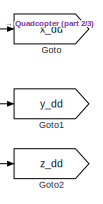
[diagram: root canvas - part 1/3, top center region]
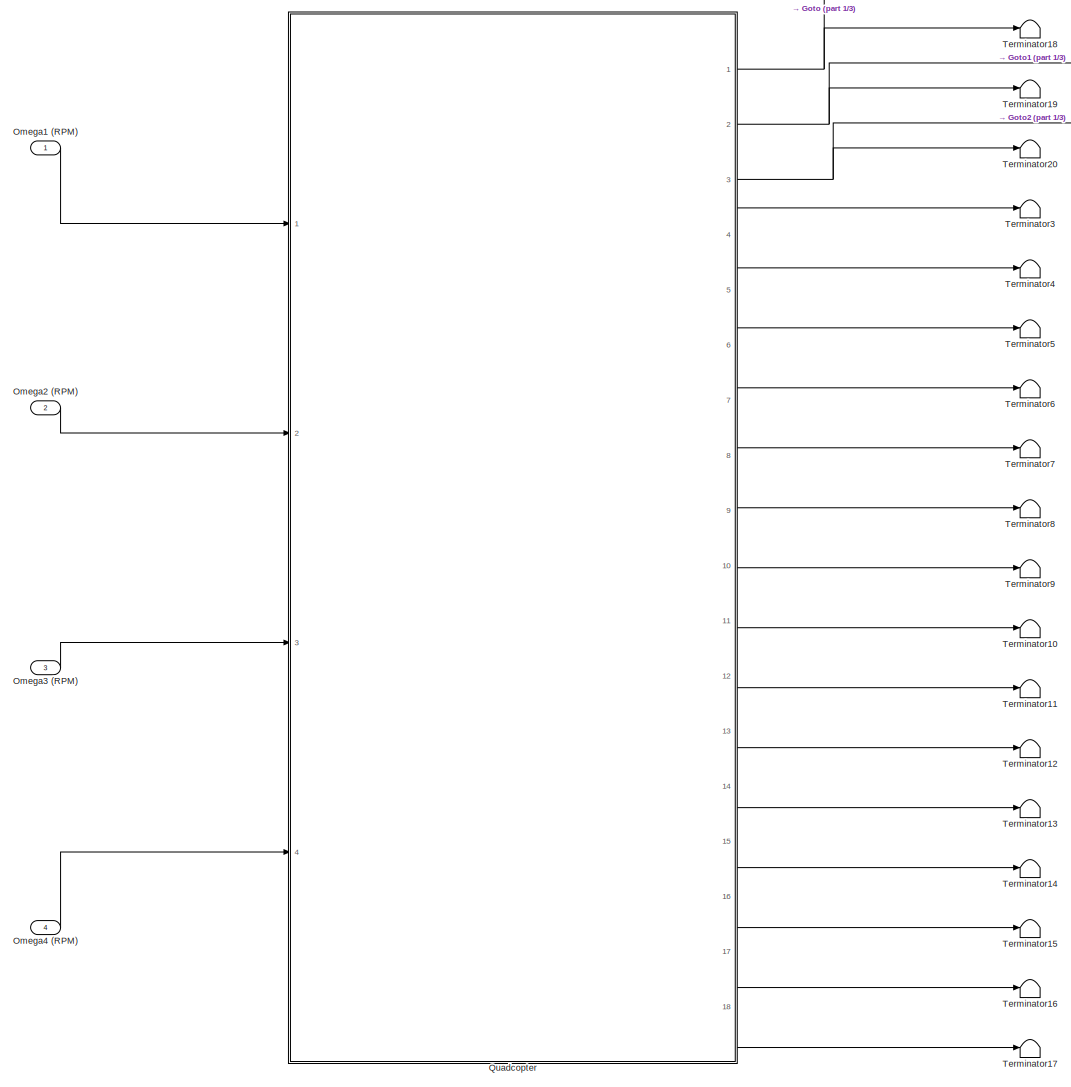
[diagram: root canvas - part 2/3, left side, full height]
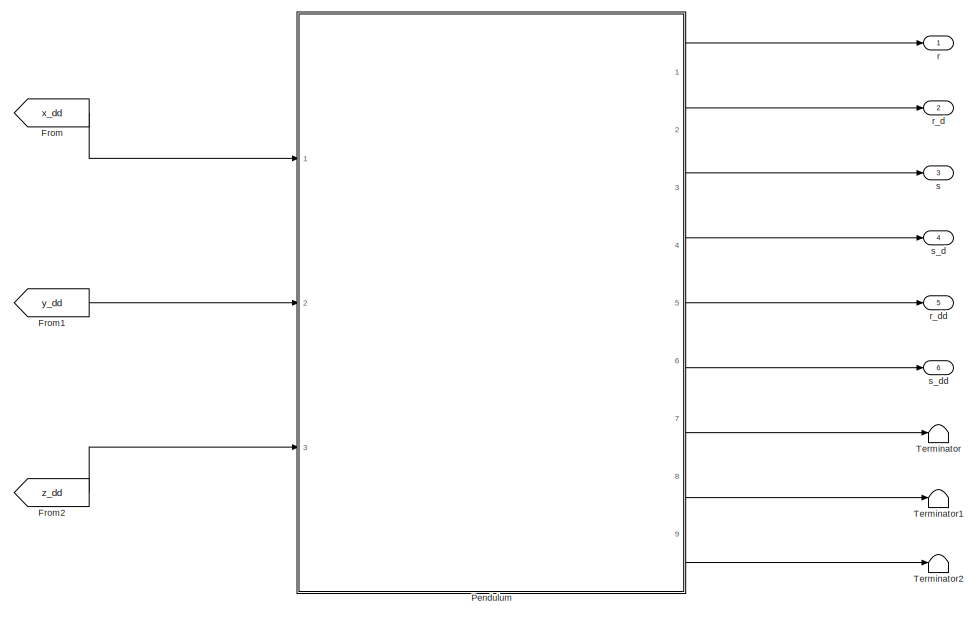
[diagram: root canvas - part 3/3, middle right region]
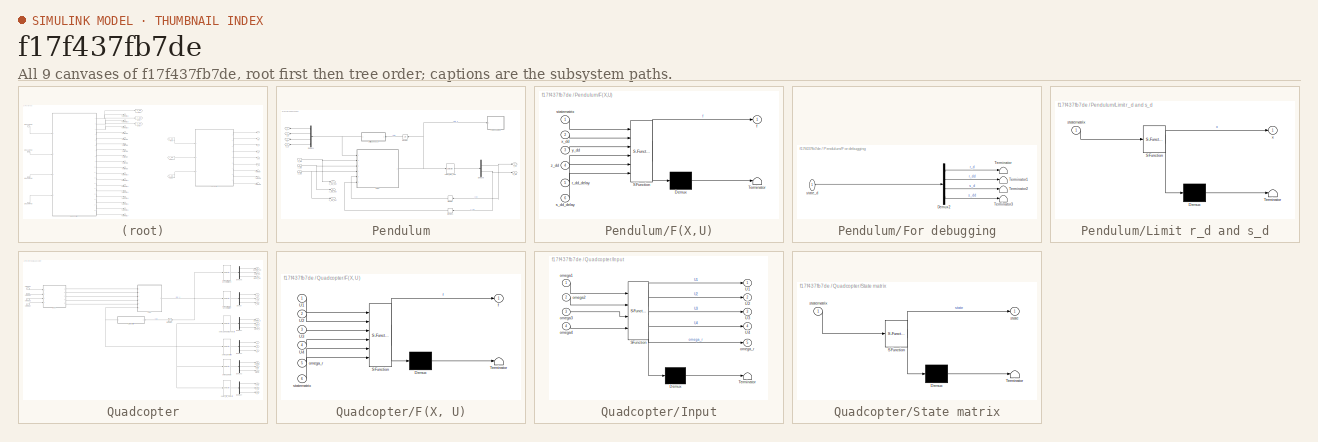
[diagram: thumbnail index - all 9 canvases of the model, root first then tree order]
MODEL slx_f17f437fb7de
KIND model
BLOCK [From] From
  GotoTag = x_dd
BLOCK [From] From1
  GotoTag = y_dd
BLOCK [From] From2
  GotoTag = z_dd
BLOCK [Goto] Goto
  GotoTag = x_dd
BLOCK [Goto] Goto1
  GotoTag = y_dd
BLOCK [Goto] Goto2
  GotoTag = z_dd
BLOCK [Inport] Omega1 (RPM)
  IconDisplay = Port number
BLOCK [Inport] Omega2 (RPM)
  IconDisplay = Port number
  Port = 2
BLOCK [Inport] Omega3 (RPM)
  IconDisplay = Port number
  Port = 3
BLOCK [Inport] Omega4 (RPM)
  IconDisplay = Port number
  Port = 4
BLOCK [SubSystem] Pendulum
  Ports = [3, 9]
  RequestExecContextInheritance = off
BLOCK [Demux] Pendulum/Demux1
  DisplayOption = bar
  Outputs = [1 1 1 1]
  Ports = [1, 4]
BLOCK [Demux] Pendulum/Demux5
  DisplayOption = bar
  Outputs = [1 1]
  Ports = [1, 2]
BLOCK [SubSystem] Pendulum/F(X,U)
  ErrorFcn = Stateflow.Translate.translate
  PermitHierarchicalResolution = ExplicitOnly
  Ports = [6, 1]
  RequestExecContextInheritance = off
  SFBlockType = MATLAB Function
  TreatAsAtomicUnit = on
BLOCK [Demux] Pendulum/F(X,U)/ Demux 
  Outputs = 1
  Ports = [1, 1]
BLOCK [S-Function] Pendulum/F(X,U)/ SFunction 
  EnableBusSupport = on
  FunctionName = sf_sfun
  PortCounts = [6 2]
  Ports = [6, 2]
  Tag = Stateflow S-Function flying_ip_1 4
BLOCK [Terminator] Pendulum/F(X,U)/ Terminator 
BLOCK [Outport] Pendulum/F(X,U)/f
  IconDisplay = Port number
BLOCK [Inport] Pendulum/F(X,U)/r_dd_delay
  IconDisplay = Port number
  Port = 5
BLOCK [Inport] Pendulum/F(X,U)/s_dd_delay
  IconDisplay = Port number
  Port = 6
BLOCK [Inport] Pendulum/F(X,U)/statematrix
  IconDisplay = Port number
BLOCK [Inport] Pendulum/F(X,U)/x_dd
  IconDisplay = Port number
  Port = 2
BLOCK [Inport] Pendulum/F(X,U)/y_dd
  IconDisplay = Port number
  Port = 3
BLOCK [Inport] Pendulum/F(X,U)/z_dd
  IconDisplay = Port number
  Port = 4
BLOCK [SubSystem] Pendulum/For debugging
  Ports = [1]
  RequestExecContextInheritance = off
BLOCK [Demux] Pendulum/For debugging/Demux2
  DisplayOption = bar
  Outputs = [1 1 1 1]
  Ports = [1, 4]
BLOCK [Terminator] Pendulum/For debugging/Terminator
BLOCK [Terminator] Pendulum/For debugging/Terminator1
BLOCK [Terminator] Pendulum/For debugging/Terminator2
BLOCK [Terminator] Pendulum/For debugging/Terminator3
BLOCK [Inport] Pendulum/For debugging/state_d
  IconDisplay = Port number
BLOCK [Integrator] Pendulum/Integrator
  Ports = [1, 1]
BLOCK [SubSystem] Pendulum/Limit r_d and s_d
  ErrorFcn = Stateflow.Translate.translate
  PermitHierarchicalResolution = ExplicitOnly
  Ports = [1, 1]
  RequestExecContextInheritance = off
  SFBlockType = MATLAB Function
  TreatAsAtomicUnit = on
BLOCK [Demux] Pendulum/Limit r_d and s_d/ Demux 
  Outputs = 1
  Ports = [1, 1]
BLOCK [S-Function] Pendulum/Limit r_d and s_d/ SFunction 
  EnableBusSupport = on
  FunctionName = sf_sfun
  PortCounts = [1 2]
  Ports = [1, 2]
  Tag = Stateflow S-Function flying_ip_1 5
BLOCK [Terminator] Pendulum/Limit r_d and s_d/ Terminator 
BLOCK [Inport] Pendulum/Limit r_d and s_d/statematrix
  IconDisplay = Port number
BLOCK [Outport] Pendulum/Limit r_d and s_d/x
  IconDisplay = Port number
BLOCK [Memory] Pendulum/Memory
BLOCK [Memory] Pendulum/Memory1
BLOCK [Outport] Pendulum/r
  IconDisplay = Port number
BLOCK [Outport] Pendulum/r_d
  IconDisplay = Port number
  Port = 2
BLOCK [Outport] Pendulum/r_dd
  IconDisplay = Port number
  Port = 5
BLOCK [Outport] Pendulum/s
  IconDisplay = Port number
  Port = 3
BLOCK [Outport] Pendulum/s_d
  IconDisplay = Port number
  Port = 4
BLOCK [Outport] Pendulum/s_dd
  IconDisplay = Port number
  Port = 6
BLOCK [Selector] Pendulum/select_rdd_sdd
  Indices = [2 4]
  InputPortWidth = 4
  Ports = [1, 1]
BLOCK [Inport] Pendulum/x_dd
  IconDisplay = Port number
BLOCK [Outport] Pendulum/x_dd_out
  IconDisplay = Port number
  Port = 7
BLOCK [Inport] Pendulum/y_dd
  IconDisplay = Port number
  Port = 2
BLOCK [Outport] Pendulum/y_dd_out
  IconDisplay = Port number
  Port = 8
BLOCK [Inport] Pendulum/z_dd
  IconDisplay = Port number
  Port = 3
BLOCK [Outport] Pendulum/z_dd_out
  IconDisplay = Port number
  Port = 9
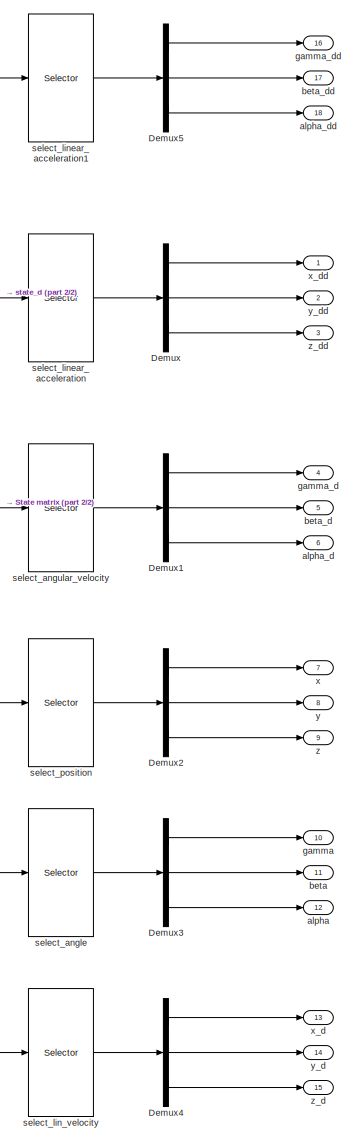
[diagram: Quadcopter - part 1/2, right side, full height]
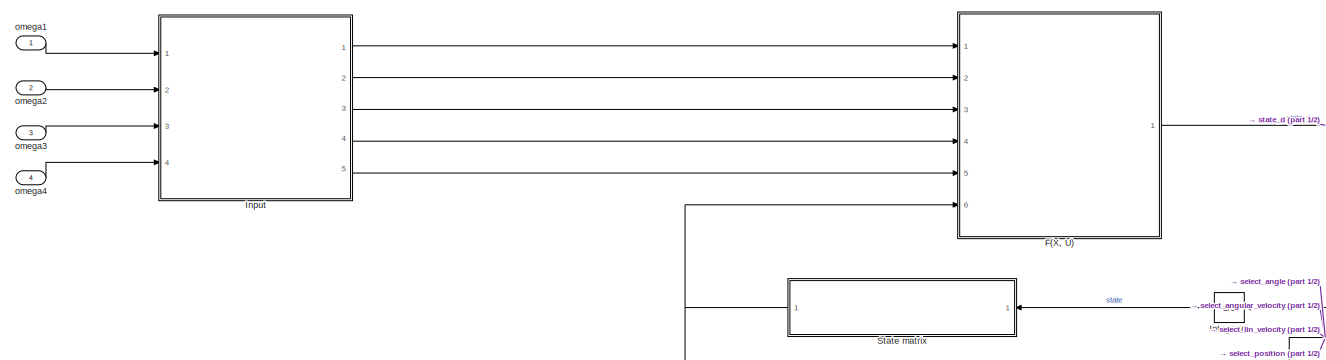
[diagram: Quadcopter - part 2/2, top left region]
BLOCK [SubSystem] Quadcopter
  Ports = [4, 18]
  RequestExecContextInheritance = off
BLOCK [Demux] Quadcopter/Demux
  DisplayOption = bar
  Outputs = [1 1 1]
  Ports = [1, 3]
BLOCK [Demux] Quadcopter/Demux1
  DisplayOption = bar
  Outputs = [1 1 1]
  Ports = [1, 3]
BLOCK [Demux] Quadcopter/Demux2
  DisplayOption = bar
  Outputs = [1 1 1]
  Ports = [1, 3]
BLOCK [Demux] Quadcopter/Demux3
  DisplayOption = bar
  Outputs = [1 1 1]
  Ports = [1, 3]
BLOCK [Demux] Quadcopter/Demux4
  DisplayOption = bar
  Outputs = [1 1 1]
  Ports = [1, 3]
BLOCK [Demux] Quadcopter/Demux5
  DisplayOption = bar
  Outputs = [1 1 1]
  Ports = [1, 3]
BLOCK [SubSystem] Quadcopter/F(X, U)
  ErrorFcn = Stateflow.Translate.translate
  PermitHierarchicalResolution = ExplicitOnly
  Ports = [6, 1]
  RequestExecContextInheritance = off
  SFBlockType = MATLAB Function
  TreatAsAtomicUnit = on
BLOCK [Demux] Quadcopter/F(X, U)/ Demux 
  Outputs = 1
  Ports = [1, 1]
BLOCK [S-Function] Quadcopter/F(X, U)/ SFunction 
  EnableBusSupport = on
  FunctionName = sf_sfun
  PortCounts = [6 2]
  Ports = [6, 2]
  Tag = Stateflow S-Function flying_ip_1 2
BLOCK [Terminator] Quadcopter/F(X, U)/ Terminator 
BLOCK [Inport] Quadcopter/F(X, U)/U1
  IconDisplay = Port number
BLOCK [Inport] Quadcopter/F(X, U)/U2
  IconDisplay = Port number
  Port = 2
BLOCK [Inport] Quadcopter/F(X, U)/U3
  IconDisplay = Port number
  Port = 3
BLOCK [Inport] Quadcopter/F(X, U)/U4
  IconDisplay = Port number
  Port = 4
BLOCK [Outport] Quadcopter/F(X, U)/f
  IconDisplay = Port number
BLOCK [Inport] Quadcopter/F(X, U)/omega_r
  IconDisplay = Port number
  Port = 5
BLOCK [Inport] Quadcopter/F(X, U)/statematrix
  IconDisplay = Port number
  Port = 6
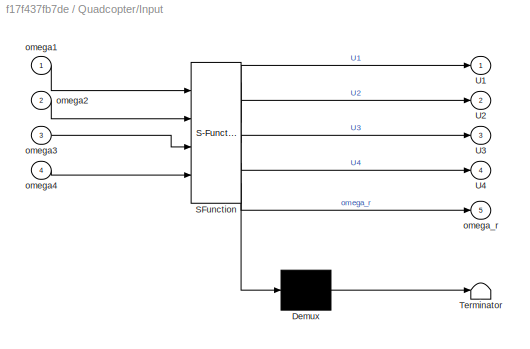
BLOCK [SubSystem] Quadcopter/Input
  ErrorFcn = Stateflow.Translate.translate
  PermitHierarchicalResolution = ExplicitOnly
  Ports = [4, 5]
  RequestExecContextInheritance = off
  SFBlockType = MATLAB Function
  TreatAsAtomicUnit = on
BLOCK [Demux] Quadcopter/Input/ Demux 
  Outputs = 1
  Ports = [1, 1]
BLOCK [S-Function] Quadcopter/Input/ SFunction 
  EnableBusSupport = on
  FunctionName = sf_sfun
  PortCounts = [4 6]
  Ports = [4, 6]
  Tag = Stateflow S-Function flying_ip_1 3
BLOCK [Terminator] Quadcopter/Input/ Terminator 
BLOCK [Outport] Quadcopter/Input/U1
  IconDisplay = Port number
BLOCK [Outport] Quadcopter/Input/U2
  IconDisplay = Port number
  Port = 2
BLOCK [Outport] Quadcopter/Input/U3
  IconDisplay = Port number
  Port = 3
BLOCK [Outport] Quadcopter/Input/U4
  IconDisplay = Port number
  Port = 4
BLOCK [Inport] Quadcopter/Input/omega1
  IconDisplay = Port number
BLOCK [Inport] Quadcopter/Input/omega2
  IconDisplay = Port number
  Port = 2
BLOCK [Inport] Quadcopter/Input/omega3
  IconDisplay = Port number
  Port = 3
BLOCK [Inport] Quadcopter/Input/omega4
  IconDisplay = Port number
  Port = 4
BLOCK [Outport] Quadcopter/Input/omega_r
  IconDisplay = Port number
  Port = 5
BLOCK [Integrator] Quadcopter/Integrator
  Ports = [1, 1]
BLOCK [SubSystem] Quadcopter/State matrix
  ErrorFcn = Stateflow.Translate.translate
  PermitHierarchicalResolution = ExplicitOnly
  Ports = [1, 1]
  RequestExecContextInheritance = off
  SFBlockType = MATLAB Function
  TreatAsAtomicUnit = on
BLOCK [Demux] Quadcopter/State matrix/ Demux 
  Outputs = 1
  Ports = [1, 1]
BLOCK [S-Function] Quadcopter/State matrix/ SFunction 
  EnableBusSupport = on
  FunctionName = sf_sfun
  PortCounts = [1 2]
  Ports = [1, 2]
  Tag = Stateflow S-Function flying_ip_1 1
BLOCK [Terminator] Quadcopter/State matrix/ Terminator 
BLOCK [Outport] Quadcopter/State matrix/state
  IconDisplay = Port number
BLOCK [Inport] Quadcopter/State matrix/statematrix
  IconDisplay = Port number
BLOCK [Outport] Quadcopter/alpha
  IconDisplay = Port number
  Port = 12
BLOCK [Outport] Quadcopter/alpha_d
  IconDisplay = Port number
  Port = 6
BLOCK [Outport] Quadcopter/alpha_dd
  IconDisplay = Port number
  Port = 18
BLOCK [Outport] Quadcopter/beta
  IconDisplay = Port number
  Port = 11
BLOCK [Outport] Quadcopter/beta_d
  IconDisplay = Port number
  Port = 5
BLOCK [Outport] Quadcopter/beta_dd
  IconDisplay = Port number
  Port = 17
BLOCK [Outport] Quadcopter/gamma
  IconDisplay = Port number
  Port = 10
BLOCK [Outport] Quadcopter/gamma_d
  IconDisplay = Port number
  Port = 4
BLOCK [Outport] Quadcopter/gamma_dd
  IconDisplay = Port number
  Port = 16
BLOCK [Inport] Quadcopter/omega1
  IconDisplay = Port number
BLOCK [Inport] Quadcopter/omega2
  IconDisplay = Port number
  Port = 2
BLOCK [Inport] Quadcopter/omega3
  IconDisplay = Port number
  Port = 3
BLOCK [Inport] Quadcopter/omega4
  IconDisplay = Port number
  Port = 4
BLOCK [Selector] Quadcopter/select_angle
  Indices = [7 9 11]
  InputPortWidth = 12
  Ports = [1, 1]
BLOCK [Selector] Quadcopter/select_angular_velocity
  Indices = [8 10 12]
  InputPortWidth = 12
  Ports = [1, 1]
BLOCK [Selector] Quadcopter/select_lin_velocity
  Indices = [2 4 6]
  InputPortWidth = 12
  Ports = [1, 1]
BLOCK [Selector] Quadcopter/select_linear_acceleration
  Indices = [2 4 6]
  InputPortWidth = 12
  Ports = [1, 1]
BLOCK [Selector] Quadcopter/select_linear_acceleration1
  Indices = [8 10 12]
  InputPortWidth = 12
  Ports = [1, 1]
BLOCK [Selector] Quadcopter/select_position
  Indices = [1 3 5]
  InputPortWidth = 12
  Ports = [1, 1]
BLOCK [Outport] Quadcopter/x
  IconDisplay = Port number
  Port = 7
BLOCK [Outport] Quadcopter/x_d
  IconDisplay = Port number
  Port = 13
BLOCK [Outport] Quadcopter/x_dd
  IconDisplay = Port number
BLOCK [Outport] Quadcopter/y
  IconDisplay = Port number
  Port = 8
BLOCK [Outport] Quadcopter/y_d
  IconDisplay = Port number
  Port = 14
BLOCK [Outport] Quadcopter/y_dd
  IconDisplay = Port number
  Port = 2
BLOCK [Outport] Quadcopter/z
  IconDisplay = Port number
  Port = 9
BLOCK [Outport] Quadcopter/z_d
  IconDisplay = Port number
  Port = 15
BLOCK [Outport] Quadcopter/z_dd
  IconDisplay = Port number
  Port = 3
BLOCK [Terminator] Terminator
BLOCK [Terminator] Terminator1
BLOCK [Terminator] Terminator10
BLOCK [Terminator] Terminator11
BLOCK [Terminator] Terminator12
BLOCK [Terminator] Terminator13
BLOCK [Terminator] Terminator14
BLOCK [Terminator] Terminator15
BLOCK [Terminator] Terminator16
BLOCK [Terminator] Terminator17
BLOCK [Terminator] Terminator18
BLOCK [Terminator] Terminator19
BLOCK [Terminator] Terminator2
BLOCK [Terminator] Terminator20
BLOCK [Terminator] Terminator3
BLOCK [Terminator] Terminator4
BLOCK [Terminator] Terminator5
BLOCK [Terminator] Terminator6
BLOCK [Terminator] Terminator7
BLOCK [Terminator] Terminator8
BLOCK [Terminator] Terminator9
BLOCK [Outport] r
  IconDisplay = Port number
BLOCK [Outport] r_d
  IconDisplay = Port number
  Port = 2
BLOCK [Outport] r_dd
  IconDisplay = Port number
  Port = 5
BLOCK [Outport] s
  IconDisplay = Port number
  Port = 3
BLOCK [Outport] s_d
  IconDisplay = Port number
  Port = 4
BLOCK [Outport] s_dd
  IconDisplay = Port number
  Port = 6
LINE From1:1 -> Pendulum:2
LINE From2:1 -> Pendulum:3
LINE From:1 -> Pendulum:1
LINE Omega1 (RPM):1 -> Quadcopter:1
LINE Omega2 (RPM):1 -> Quadcopter:2
LINE Omega3 (RPM):1 -> Quadcopter:3
LINE Omega4 (RPM):1 -> Quadcopter:4
LINE Pendulum/Demux1:1 -> Pendulum/r:1
LINE Pendulum/Demux1:2 -> Pendulum/r_d:1
LINE Pendulum/Demux1:3 -> Pendulum/s:1
LINE Pendulum/Demux1:4 -> Pendulum/s_d:1
NET Pendulum/Demux5:1 -> Pendulum/Memory:1, Pendulum/r_dd:1
NET Pendulum/Demux5:2 -> Pendulum/Memory1:1, Pendulum/s_dd:1
NET Pendulum/F(X,U):1 -> Pendulum/For debugging:1, Pendulum/Integrator:1, Pendulum/select_rdd_sdd:1
LINE Pendulum/For debugging/Demux2:1 -> Pendulum/For debugging/Terminator:1
LINE Pendulum/For debugging/Demux2:2 -> Pendulum/For debugging/Terminator1:1
LINE Pendulum/For debugging/Demux2:3 -> Pendulum/For debugging/Terminator2:1
LINE Pendulum/For debugging/Demux2:4 -> Pendulum/For debugging/Terminator3:1
LINE Pendulum/For debugging/state_d:1 -> Pendulum/For debugging/Demux2:1
LINE Pendulum/Integrator:1 -> Pendulum/Limit r_d and s_d:1
NET Pendulum/Limit r_d and s_d:1 -> Pendulum/Demux1:1, Pendulum/F(X,U):1
LINE Pendulum/Memory1:1 -> Pendulum/F(X,U):6
LINE Pendulum/Memory:1 -> Pendulum/F(X,U):5
LINE Pendulum/select_rdd_sdd:1 -> Pendulum/Demux5:1
NET Pendulum/x_dd:1 -> Pendulum/F(X,U):2, Pendulum/x_dd_out:1
NET Pendulum/y_dd:1 -> Pendulum/F(X,U):3, Pendulum/y_dd_out:1
NET Pendulum/z_dd:1 -> Pendulum/F(X,U):4, Pendulum/z_dd_out:1
LINE Pendulum:1 -> r:1
LINE Pendulum:2 -> r_d:1
LINE Pendulum:3 -> s:1
LINE Pendulum:4 -> s_d:1
LINE Pendulum:5 -> r_dd:1
LINE Pendulum:6 -> s_dd:1
LINE Pendulum:7 -> Terminator:1
LINE Pendulum:8 -> Terminator1:1
LINE Pendulum:9 -> Terminator2:1
LINE Quadcopter/Demux1:1 -> Quadcopter/gamma_d:1
LINE Quadcopter/Demux1:2 -> Quadcopter/beta_d:1
LINE Quadcopter/Demux1:3 -> Quadcopter/alpha_d:1
LINE Quadcopter/Demux2:1 -> Quadcopter/x:1
LINE Quadcopter/Demux2:2 -> Quadcopter/y:1
LINE Quadcopter/Demux2:3 -> Quadcopter/z:1
LINE Quadcopter/Demux3:1 -> Quadcopter/gamma:1
LINE Quadcopter/Demux3:2 -> Quadcopter/beta:1
LINE Quadcopter/Demux3:3 -> Quadcopter/alpha:1
LINE Quadcopter/Demux4:1 -> Quadcopter/x_d:1
LINE Quadcopter/Demux4:2 -> Quadcopter/y_d:1
LINE Quadcopter/Demux4:3 -> Quadcopter/z_d:1
LINE Quadcopter/Demux5:1 -> Quadcopter/gamma_dd:1
LINE Quadcopter/Demux5:2 -> Quadcopter/beta_dd:1
LINE Quadcopter/Demux5:3 -> Quadcopter/alpha_dd:1
LINE Quadcopter/Demux:1 -> Quadcopter/x_dd:1
LINE Quadcopter/Demux:2 -> Quadcopter/y_dd:1
LINE Quadcopter/Demux:3 -> Quadcopter/z_dd:1
NET Quadcopter/F(X, U):1 -> Quadcopter/Integrator:1, Quadcopter/select_linear_acceleration1:1, Quadcopter/select_linear_acceleration:1
LINE Quadcopter/Input:1 -> Quadcopter/F(X, U):1
LINE Quadcopter/Input:2 -> Quadcopter/F(X, U):2
LINE Quadcopter/Input:3 -> Quadcopter/F(X, U):3
LINE Quadcopter/Input:4 -> Quadcopter/F(X, U):4
LINE Quadcopter/Input:5 -> Quadcopter/F(X, U):5
LINE Quadcopter/Integrator:1 -> Quadcopter/State matrix:1
NET Quadcopter/State matrix:1 -> Quadcopter/F(X, U):6, Quadcopter/select_angle:1, Quadcopter/select_angular_velocity:1, Quadcopter/select_lin_velocity:1, Quadcopter/select_position:1
LINE Quadcopter/omega1:1 -> Quadcopter/Input:1
LINE Quadcopter/omega2:1 -> Quadcopter/Input:2
LINE Quadcopter/omega3:1 -> Quadcopter/Input:3
LINE Quadcopter/omega4:1 -> Quadcopter/Input:4
LINE Quadcopter/select_angle:1 -> Quadcopter/Demux3:1
LINE Quadcopter/select_angular_velocity:1 -> Quadcopter/Demux1:1
LINE Quadcopter/select_lin_velocity:1 -> Quadcopter/Demux4:1
LINE Quadcopter/select_linear_acceleration1:1 -> Quadcopter/Demux5:1
LINE Quadcopter/select_linear_acceleration:1 -> Quadcopter/Demux:1
LINE Quadcopter/select_position:1 -> Quadcopter/Demux2:1
NET Quadcopter:1 -> Goto:1, Terminator18:1
LINE Quadcopter:10 -> Terminator9:1
LINE Quadcopter:11 -> Terminator10:1
LINE Quadcopter:12 -> Terminator11:1
LINE Quadcopter:13 -> Terminator12:1
LINE Quadcopter:14 -> Terminator13:1
LINE Quadcopter:15 -> Terminator14:1
LINE Quadcopter:16 -> Terminator15:1
LINE Quadcopter:17 -> Terminator16:1
LINE Quadcopter:18 -> Terminator17:1
NET Quadcopter:2 -> Goto1:1, Terminator19:1
NET Quadcopter:3 -> Goto2:1, Terminator20:1
LINE Quadcopter:4 -> Terminator3:1
LINE Quadcopter:5 -> Terminator4:1
LINE Quadcopter:6 -> Terminator5:1
LINE Quadcopter:7 -> Terminator6:1
LINE Quadcopter:8 -> Terminator7:1
LINE Quadcopter:9 -> Terminator8:1
note: NET lines group one-source signal fan-out (src -> all destinations, sorted); 1:1 wires keep LINE
